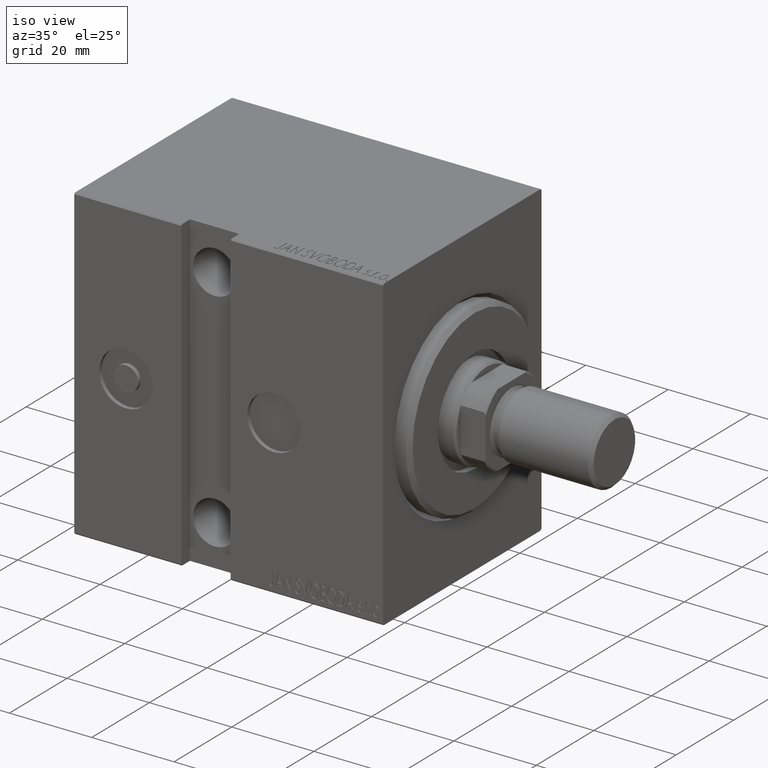
[diagram: clean part render]
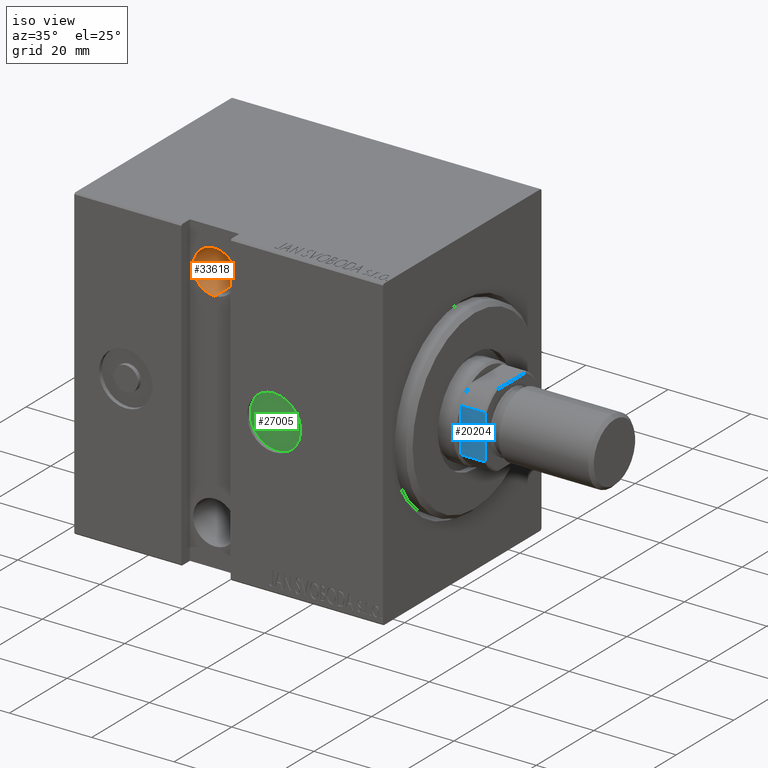
[diagram: same view with three faces highlighted in distinct colors, each labeled with its STEP entity id]
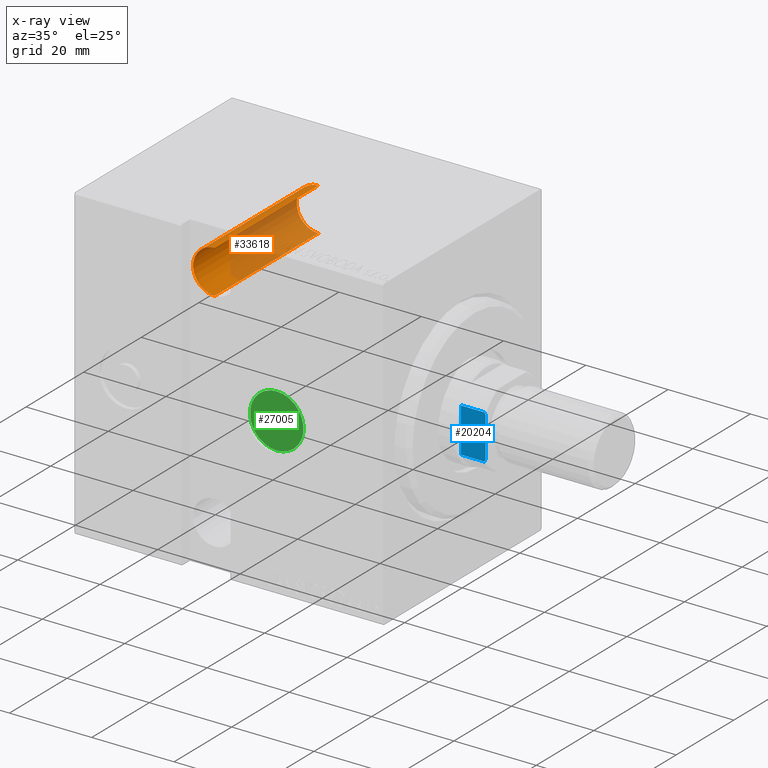
[diagram: x-ray of the same camera — body ghosted, the three highlighted faces saturated]
A machine part, iso view with three faces highlighted in distinct colors.
The next image is the same camera in x-ray (body ghosted, the three faces saturated) — at least one of them is partly hidden behind the body in this view.
Their STEP definitions:

[orange] entity #33618 — the highlighted cylindrical surface (edge-blend (fillet) strip) has radius 5.25 mm, axis along (0, -1, 0).
#402 = DIRECTION ( 'NONE',  ( -0.000000000000000000, 1.000000000000000000, -0.000000000000000000 ) ) ;
#1952 = AXIS2_PLACEMENT_3D ( 'NONE', #20649, #39968, #20235 ) ;
#2914 = DIRECTION ( 'NONE',  ( 0.000000000000000000, -1.000000000000000000, 0.000000000000000000 ) ) ;
#3736 = ORIENTED_EDGE ( 'NONE', *, *, #34827, .F. ) ;
#5343 = ORIENTED_EDGE ( 'NONE', *, *, #26757, .T. ) ;
#9225 = DIRECTION ( 'NONE',  ( 0.000000000000000000, 0.000000000000000000, -1.000000000000000000 ) ) ;
#11713 = VECTOR ( 'NONE', #14794, 1000.000000000000000 ) ;
#14153 = VERTEX_POINT ( 'NONE', #35382 ) ;
#14584 = LINE ( 'NONE', #38005, #11713 ) ;
#14794 = DIRECTION ( 'NONE',  ( -0.000000000000000000, 1.000000000000000000, -0.000000000000000000 ) ) ;
#16330 = EDGE_LOOP ( 'NONE', ( #3736, #17822, #5343, #20177 ) ) ;
#17744 = VECTOR ( 'NONE', #29450, 1000.000000000000000 ) ;
#17822 = ORIENTED_EDGE ( 'NONE', *, *, #37330, .F. ) ;
#20177 = ORIENTED_EDGE ( 'NONE', *, *, #28577, .F. ) ;
#20235 = DIRECTION ( 'NONE',  ( 0.000000000000000000, -3.304235192336776991E-16, -1.000000000000000000 ) ) ;
#20384 = DIRECTION ( 'NONE',  ( 0.000000000000000000, 0.000000000000000000, 1.000000000000000000 ) ) ;
#20649 = CARTESIAN_POINT ( 'NONE',  ( 43.00000000000001421, -11.49999999999999289, 27.50000000000000000 ) ) ;
#22254 = CARTESIAN_POINT ( 'NONE',  ( 43.00000000000001421, 24.50000000000000000, 27.50000000000000000 ) ) ;
#22771 = CIRCLE ( 'NONE', #1952, 5.249999999999997335 ) ;
#23172 = VERTEX_POINT ( 'NONE', #25438 ) ;
#23319 = VERTEX_POINT ( 'NONE', #24334 ) ;
#23371 = AXIS2_PLACEMENT_3D ( 'NONE', #22254, #2914, #9225 ) ;
#24334 = CARTESIAN_POINT ( 'NONE',  ( 43.00000000000001421, -11.49999999999999112, 32.74999999999999289 ) ) ;
#24719 = CIRCLE ( 'NONE', #23371, 5.249999999999997335 ) ;
#25438 = CARTESIAN_POINT ( 'NONE',  ( 43.00000000000001421, 24.50000000000000000, 32.74999999999999289 ) ) ;
#26241 = CARTESIAN_POINT ( 'NONE',  ( 43.00000000000001421, -27.50000000000002487, 27.50000000000000000 ) ) ;
#26757 = EDGE_CURVE ( 'NONE', #23319, #23172, #29666, .T. ) ;
#27106 = FACE_OUTER_BOUND ( 'NONE', #16330, .T. ) ;
#28549 = VERTEX_POINT ( 'NONE', #33834 ) ;
#28577 = EDGE_CURVE ( 'NONE', #14153, #23172, #24719, .T. ) ;
#29450 = DIRECTION ( 'NONE',  ( -0.000000000000000000, 1.000000000000000000, -0.000000000000000000 ) ) ;
#29666 = LINE ( 'NONE', #32915, #17744 ) ;
#32915 = CARTESIAN_POINT ( 'NONE',  ( 43.00000000000001421, -27.50000000000002487, 32.74999999999999289 ) ) ;
#33618 = ADVANCED_FACE ( 'NONE', ( #27106 ), #36886, .F. ) ;
#33834 = CARTESIAN_POINT ( 'NONE',  ( 43.00000000000001421, -11.49999999999999467, 22.25000000000000355 ) ) ;
#34827 = EDGE_CURVE ( 'NONE', #28549, #14153, #14584, .T. ) ;
#35382 = CARTESIAN_POINT ( 'NONE',  ( 43.00000000000001421, 24.50000000000000000, 22.25000000000000355 ) ) ;
#36658 = AXIS2_PLACEMENT_3D ( 'NONE', #26241, #402, #20384 ) ;
#36886 = CYLINDRICAL_SURFACE ( 'NONE', #36658, 5.249999999999994671 ) ;
#37330 = EDGE_CURVE ( 'NONE', #23319, #28549, #22771, .T. ) ;
#38005 = CARTESIAN_POINT ( 'NONE',  ( 43.00000000000001421, -27.50000000000002487, 22.25000000000000355 ) ) ;
#39968 = DIRECTION ( 'NONE',  ( -0.000000000000000000, 1.000000000000000000, -1.963837897332234442E-16 ) ) ;

[blue] entity #20204 — the highlighted planar face has unit normal (0, 1, 0).
#1507 = CARTESIAN_POINT ( 'NONE',  ( -4.799999999999995381, -9.000000000000001776, 77.00000000000001421 ) ) ;
#2377 = CARTESIAN_POINT ( 'NONE',  ( 4.800000000000006928, -9.000000000000001776, 77.00000000000001421 ) ) ;
#3226 = EDGE_CURVE ( 'NONE', #14958, #29790, #41323, .T. ) ;
#3287 = FACE_OUTER_BOUND ( 'NONE', #19726, .T. ) ;
#6734 = CARTESIAN_POINT ( 'NONE',  ( -4.799999999999995381, -9.000000000000001776, 77.00000000000001421 ) ) ;
#7461 = CARTESIAN_POINT ( 'NONE',  ( -5.408326913195988794, -8.999999999999998224, -0.001000000000001000089 ) ) ;
#8043 = VECTOR ( 'NONE', #11128, 1000.000000000000000 ) ;
#10811 = B_SPLINE_CURVE_WITH_KNOTS ( 'NONE', 3,
 ( #19117, #33016, #12388, #25418 ),
 .UNSPECIFIED., .F., .F.,
 ( 4, 4 ),
 ( 0.000000000000000000, 0.0006782784334759201297 ),
 .UNSPECIFIED. ) ;
#11080 = CARTESIAN_POINT ( 'NONE',  ( -5.408326913195988794, -8.999999999999998224, 76.70000000000001705 ) ) ;
#11128 = DIRECTION ( 'NONE',  ( -0.000000000000000000, -0.000000000000000000, 1.000000000000000000 ) ) ;
#12388 = CARTESIAN_POINT ( 'NONE',  ( 5.004607318780310621, -9.000000000000001776, 76.90371420292693472 ) ) ;
#12826 = EDGE_CURVE ( 'NONE', #27365, #29790, #10811, .T. ) ;
#12941 = VERTEX_POINT ( 'NONE', #26930 ) ;
#13599 = CARTESIAN_POINT ( 'NONE',  ( -5.408326913195988794, -8.999999999999998224, 76.70000000000001705 ) ) ;
#14859 = CARTESIAN_POINT ( 'NONE',  ( -8.999999999999998224, -9.000000000000001776, 77.00000000000001421 ) ) ;
#14958 = VERTEX_POINT ( 'NONE', #6734 ) ;
#16326 = CARTESIAN_POINT ( 'NONE',  ( -8.999999999999998224, -9.000000000000001776, 77.00000000000001421 ) ) ;
#16537 = PLANE ( 'NONE',  #25335 ) ;
#16789 = VERTEX_POINT ( 'NONE', #13599 ) ;
#18041 = B_SPLINE_CURVE_WITH_KNOTS ( 'NONE', 3,
 ( #1507, #34092, #40791, #11080 ),
 .UNSPECIFIED., .F., .F.,
 ( 4, 4 ),
 ( 0.000000000000000000, 0.0006782784334759310802 ),
 .UNSPECIFIED. ) ;
#18880 = ORIENTED_EDGE ( 'NONE', *, *, #32529, .T. ) ;
#19117 = CARTESIAN_POINT ( 'NONE',  ( 5.408326913195988794, -8.999999999999998224, 76.70000000000001705 ) ) ;
#19254 = DIRECTION ( 'NONE',  ( 1.000000000000000000, 0.000000000000000000, 0.000000000000000000 ) ) ;
#19572 = DIRECTION ( 'NONE',  ( 0.000000000000000000, 1.000000000000000000, 0.000000000000000000 ) ) ;
#19726 = EDGE_LOOP ( 'NONE', ( #21164, #38854, #29871, #18880, #38663, #31009 ) ) ;
#20204 = ADVANCED_FACE ( 'NONE', ( #3287 ), #16537, .F. ) ;
#21164 = ORIENTED_EDGE ( 'NONE', *, *, #25922, .T. ) ;
#22529 = LINE ( 'NONE', #22965, #39291 ) ;
#22965 = CARTESIAN_POINT ( 'NONE',  ( -8.999999999999998224, -9.000000000000001776, 71.00000000000001421 ) ) ;
#25335 = AXIS2_PLACEMENT_3D ( 'NONE', #16326, #19572, #32818 ) ;
#25418 = CARTESIAN_POINT ( 'NONE',  ( 4.800000000000006928, -9.000000000000001776, 77.00000000000001421 ) ) ;
#25922 = EDGE_CURVE ( 'NONE', #35864, #27365, #31308, .T. ) ;
#25974 = CARTESIAN_POINT ( 'NONE',  ( 5.408326913195988794, -8.999999999999998224, 76.70000000000001705 ) ) ;
#26930 = CARTESIAN_POINT ( 'NONE',  ( -5.408326913195988794, -8.999999999999998224, 71.00000000000002842 ) ) ;
#27365 = VERTEX_POINT ( 'NONE', #25974 ) ;
#28112 = DIRECTION ( 'NONE',  ( 1.000000000000000000, 0.000000000000000000, 0.000000000000000000 ) ) ;
#28826 = EDGE_CURVE ( 'NONE', #12941, #16789, #37196, .T. ) ;
#29790 = VERTEX_POINT ( 'NONE', #2377 ) ;
#29871 = ORIENTED_EDGE ( 'NONE', *, *, #3226, .F. ) ;
#30078 = EDGE_CURVE ( 'NONE', #12941, #35864, #22529, .T. ) ;
#30676 = CARTESIAN_POINT ( 'NONE',  ( 5.408326913195988794, -8.999999999999998224, -0.001000000000001000089 ) ) ;
#31009 = ORIENTED_EDGE ( 'NONE', *, *, #30078, .T. ) ;
#31095 = CARTESIAN_POINT ( 'NONE',  ( 5.408326913195988794, -8.999999999999998224, 71.00000000000002842 ) ) ;
#31308 = LINE ( 'NONE', #30676, #8043 ) ;
#32529 = EDGE_CURVE ( 'NONE', #14958, #16789, #18041, .T. ) ;
#32818 = DIRECTION ( 'NONE',  ( 0.000000000000000000, -0.000000000000000000, 1.000000000000000000 ) ) ;
#33016 = CARTESIAN_POINT ( 'NONE',  ( 5.207299490555477028, -8.999999999999998224, 76.80354495430069051 ) ) ;
#33949 = DIRECTION ( 'NONE',  ( -0.000000000000000000, -0.000000000000000000, 1.000000000000000000 ) ) ;
#34092 = CARTESIAN_POINT ( 'NONE',  ( -5.004607318780298186, -9.000000000000001776, 76.90371420292693472 ) ) ;
#34441 = VECTOR ( 'NONE', #33949, 1000.000000000000000 ) ;
#35864 = VERTEX_POINT ( 'NONE', #31095 ) ;
#37196 = LINE ( 'NONE', #7461, #34441 ) ;
#38663 = ORIENTED_EDGE ( 'NONE', *, *, #28826, .F. ) ;
#38854 = ORIENTED_EDGE ( 'NONE', *, *, #12826, .T. ) ;
#39291 = VECTOR ( 'NONE', #19254, 1000.000000000000000 ) ;
#40791 = CARTESIAN_POINT ( 'NONE',  ( -5.207299490555470811, -9.000000000000001776, 76.80354495430069051 ) ) ;
#41323 = LINE ( 'NONE', #14859, #41619 ) ;
#41619 = VECTOR ( 'NONE', #28112, 1000.000000000000000 ) ;

[green] entity #27005 — the highlighted planar face has unit normal (-0, -1, 0).
#3536 = CARTESIAN_POINT ( 'NONE',  ( 26.50000000000000000, 26.50000000000000000, 2.418099390755548984E-15 ) ) ;
#5541 = CIRCLE ( 'NONE', #20782, 6.499999999999997335 ) ;
#6160 = DIRECTION ( 'NONE',  ( 6.162975822039154730E-33, 1.000000000000000000, 8.767205616560546857E-17 ) ) ;
#6725 = CARTESIAN_POINT ( 'NONE',  ( 26.50000000000000000, 26.50000000000000000, 2.418099390755548984E-15 ) ) ;
#9637 = PLANE ( 'NONE',  #35779 ) ;
#10285 = DIRECTION ( 'NONE',  ( 0.000000000000000000, -8.767205616560546857E-17, 1.000000000000000000 ) ) ;
#12672 = EDGE_CURVE ( 'NONE', #24081, #42805, #5541, .T. ) ;
#12877 = FACE_OUTER_BOUND ( 'NONE', #37096, .T. ) ;
#12966 = AXIS2_PLACEMENT_3D ( 'NONE', #6725, #20818, #27119 ) ;
#18507 = CIRCLE ( 'NONE', #12966, 6.499999999999997335 ) ;
#20675 = DIRECTION ( 'NONE',  ( 6.162975822039154730E-33, 1.000000000000000000, 8.767205616560546857E-17 ) ) ;
#20782 = AXIS2_PLACEMENT_3D ( 'NONE', #3536, #20675, #36545 ) ;
#20818 = DIRECTION ( 'NONE',  ( 6.162975822039154730E-33, 1.000000000000000000, 8.767205616560546857E-17 ) ) ;
#21078 = ORIENTED_EDGE ( 'NONE', *, *, #29907, .T. ) ;
#24081 = VERTEX_POINT ( 'NONE', #24565 ) ;
#24565 = CARTESIAN_POINT ( 'NONE',  ( 26.50000000000000000, 26.50000000000000000, 6.500000000000000000 ) ) ;
#27005 = ADVANCED_FACE ( 'NONE', ( #12877 ), #9637, .T. ) ;
#27119 = DIRECTION ( 'NONE',  ( 0.000000000000000000, 0.000000000000000000, 1.000000000000000000 ) ) ;
#28738 = ORIENTED_EDGE ( 'NONE', *, *, #12672, .T. ) ;
#29907 = EDGE_CURVE ( 'NONE', #42805, #24081, #18507, .T. ) ;
#33078 = CARTESIAN_POINT ( 'NONE',  ( 1.694818351060767551E-31, 26.50000000000000000, 2.284819837210382684E-15 ) ) ;
#35062 = CARTESIAN_POINT ( 'NONE',  ( 26.50000000000000000, 26.50000000000000000, -6.499999999999994671 ) ) ;
#35779 = AXIS2_PLACEMENT_3D ( 'NONE', #33078, #6160, #10285 ) ;
#36545 = DIRECTION ( 'NONE',  ( 0.000000000000000000, 0.000000000000000000, 1.000000000000000000 ) ) ;
#37096 = EDGE_LOOP ( 'NONE', ( #28738, #21078 ) ) ;
#42805 = VERTEX_POINT ( 'NONE', #35062 ) ;